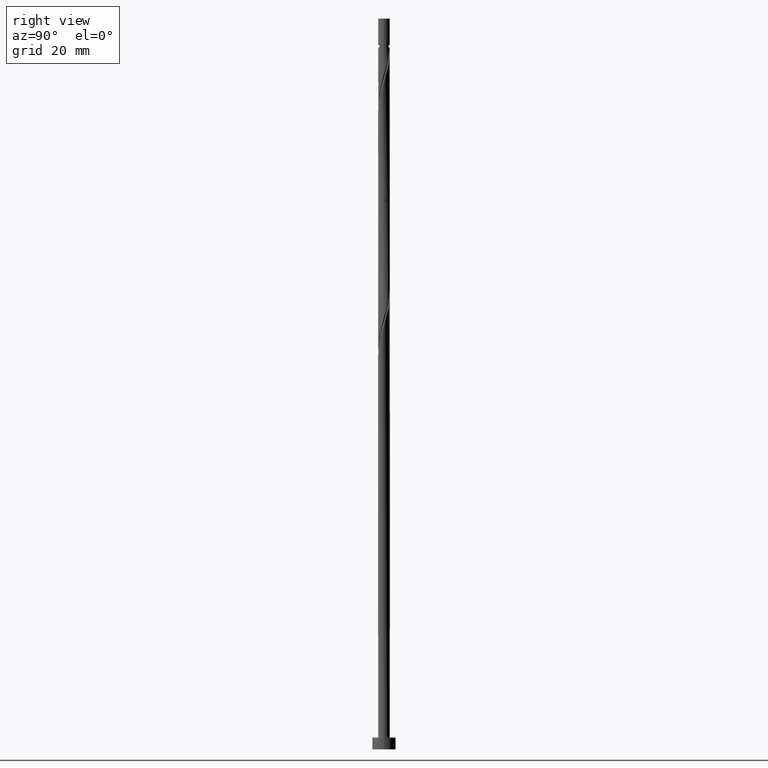
[diagram: clean part render]
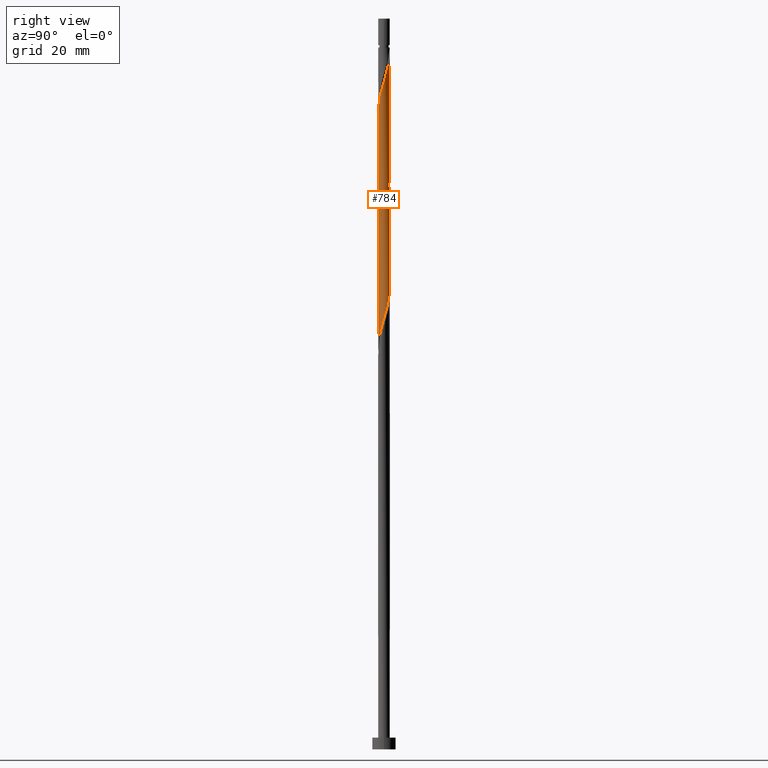
[diagram: same view with one face highlighted and labeled with its STEP entity id]
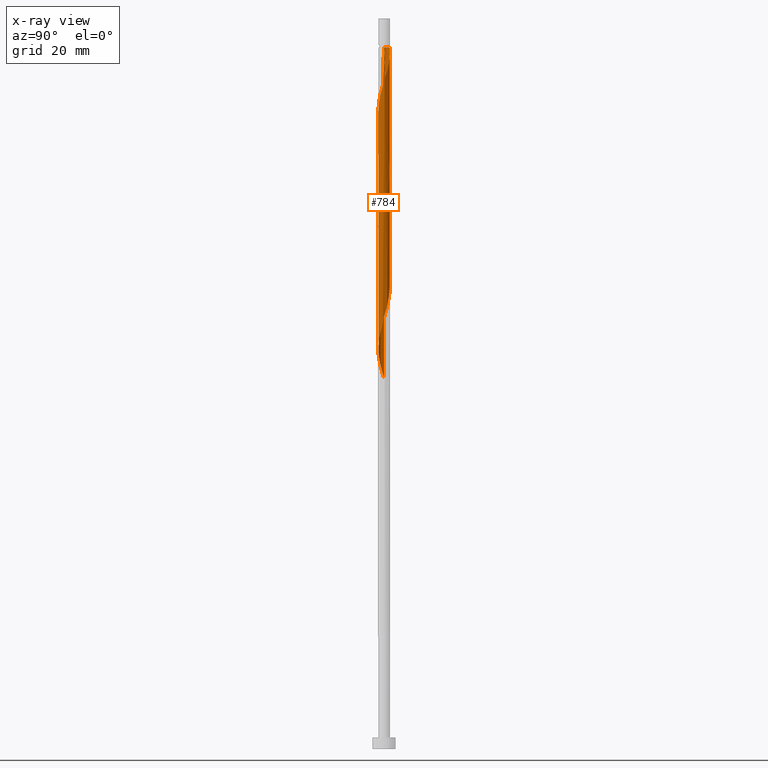
[diagram: x-ray of the same camera — body ghosted, the highlighted face saturated]
A machine part, right view. The second image highlights one B-rep face of the part: STEP entity #784.
The next image is the same camera in x-ray: the body ghosted, the highlighted face saturated — about 0% of this face is hidden behind the body in this view.
In plain terms, the highlighted cylindrical surface (bore or boss wall) has radius 1 mm, axis along (-0, -0, -1).
Its self-contained STEP definition (entity closure, byte-faithful):
#4 = CARTESIAN_POINT ( 'NONE',  ( 0.9800000000000013145, 0.1989974874213244482, 114.8675455635456757 ) ) ;
#6 = CARTESIAN_POINT ( 'NONE',  ( 0.2709383306013490311, -0.9755398771694949733, 90.38837889687896165 ) ) ;
#10 = CARTESIAN_POINT ( 'NONE',  ( -0.4150371980848580056, -0.9098044428369609360, 107.5758788968789901 ) ) ;
#51 = EDGE_CURVE ( 'NONE', #546, #231, #1178, .T. ) ;
#65 = DIRECTION ( 'NONE',  ( -0.000000000000000000, -0.000000000000000000, -1.000000000000000000 ) ) ;
#67 = CARTESIAN_POINT ( 'NONE',  ( 0.04378073590327893894, 1.011518105671216583, 78.93004556354566148 ) ) ;
#73 = CARTESIAN_POINT ( 'NONE',  ( 0.7926016667075090893, -0.6299747843123546520, 71.63837889687897587 ) ) ;
#80 = CARTESIAN_POINT ( 'NONE',  ( -0.8440690085044274538, -0.5591360655683665914, 65.38837889687899008 ) ) ;
#85 = DIRECTION ( 'NONE',  ( -0.000000000000000000, -0.000000000000000000, -1.000000000000000000 ) ) ;
#92 = CARTESIAN_POINT ( 'NONE',  ( -0.1989974874213239764, 0.9799999999999967626, 120.0758788968790185 ) ) ;
#96 = CARTESIAN_POINT ( 'NONE',  ( 0.9755398771694949733, 0.2709383306013490311, 74.76337889687897587 ) ) ;
#100 = CARTESIAN_POINT ( 'NONE',  ( 0.1989974874213249201, 0.9800000000000010925, 99.24254556354567569 ) ) ;
#108 = VECTOR ( 'NONE', #703, 1000.000000000000000 ) ;
#114 = CARTESIAN_POINT ( 'NONE',  ( -0.1135787973490352265, -0.9935289914203557782, 108.6175455635456757 ) ) ;
#120 = CARTESIAN_POINT ( 'NONE',  ( 0.7370218964083908864, -0.6758688661379378404, 111.7425455635456473 ) ) ;
#122 = CARTESIAN_POINT ( 'NONE',  ( 0.7926016667075090893, -0.6299747843123546520, 92.47171223021233288 ) ) ;
#128 = CARTESIAN_POINT ( 'NONE',  ( 0.9484818943287859350, 0.3542142389393703183, 115.3883788968790043 ) ) ;
#145 = EDGE_CURVE ( 'NONE', #257, #1139, #171, .T. ) ;
#167 = CARTESIAN_POINT ( 'NONE',  ( 0.3542142389393705404, 0.9484818943287856019, 77.88837889687897587 ) ) ;
#171 =( BOUNDED_CURVE ( )  B_SPLINE_CURVE ( 2, ( #453, #693, #350, #672, #1233, #220, #1120, #790, #10, #685, #114, #339, #567, #1127, #238, #1244, #120, #1014, #1020, #912, #1135, #1362, #4, #128, #560, #904, #574, #1252, #1351, #1335, #900, #997, #1430 ),
 .UNSPECIFIED., .F., .T. ) 
 B_SPLINE_CURVE_WITH_KNOTS ( ( 3, 2, 2, 2, 2, 2, 2, 2, 2, 2, 2, 2, 2, 2, 2, 2, 3 ),
 ( 0.5545322023138549161, 0.5625000000000000000, 0.5749999999999999556, 0.5875000000000000222, 0.6000000000000000888, 0.6125000000000001554, 0.6250000000000001110, 0.6375000000000000666, 0.6500000000000001332, 0.6625000000000000888, 0.6750000000000001554, 0.6875000000000001110, 0.7000000000000001776, 0.7125000000000001332, 0.7250000000000000888, 0.7375000000000002665, 0.7500000000000002220 ),
 .UNSPECIFIED. ) 
 CURVE ( )  GEOMETRIC_REPRESENTATION_ITEM ( )  RATIONAL_B_SPLINE_CURVE ( ( 0.9039174447099462828, 0.9019565955404752478, 0.9090909090909240486, 0.8978984914501398906, 0.9090909090909240486, 0.8978984914501398906, 0.9090909090909240486, 0.8978984914501398906, 0.9090909090909240486, 0.8978984914501398906, 0.9090909090909240486, 0.8978984914501398906, 0.9090909090909240486, 0.8978984914501398906, 0.9090909090909240486, 0.8978984914501398906, 0.9090909090909240486, 0.8978984914501398906, 0.9090909090909240486, 0.8978984914501398906, 0.9090909090909240486, 0.8978984914501398906, 0.9090909090909240486, 0.8978984914501398906, 0.9090909090909240486, 0.8978984914501398906, 0.9090909090909240486, 0.8978984914501398906, 0.9090909090909240486, 0.8978984914501398906, 0.9090909090909240486, 0.8978984914501397796, 0.9090909090909241597 ) ) 
 REPRESENTATION_ITEM ( '' )  );
#175 = CARTESIAN_POINT ( 'NONE',  ( -0.7926016667075090893, 0.6299747843123546520, 82.05504556354566148 ) ) ;
#180 = CYLINDRICAL_SURFACE ( 'NONE', #499, 1.000000000000000000 ) ;
#184 = FACE_OUTER_BOUND ( 'NONE', #921, .T. ) ;
#192 = LINE ( 'NONE', #1090, #1261 ) ;
#195 = EDGE_CURVE ( 'NONE', #294, #1139, #598, .T. ) ;
#205 = CARTESIAN_POINT ( 'NONE',  ( -0.1989974874213247813, -0.9800000000000010925, 67.99254556354566148 ) ) ;
#212 = CARTESIAN_POINT ( 'NONE',  ( 0.9484818943287856019, -0.3542142389393705404, 72.68004556354566148 ) ) ;
#217 = DIRECTION ( 'NONE',  ( -1.000000000000000000, 0.000000000000000000, 0.000000000000000000 ) ) ;
#220 = CARTESIAN_POINT ( 'NONE',  ( -0.7926016667075094224, -0.6299747843123546520, 106.0133788968790043 ) ) ;
#225 = CARTESIAN_POINT ( 'NONE',  ( 0.3542142389393705404, 0.9484818943287856019, 98.72171223021231867 ) ) ;
#231 = VERTEX_POINT ( 'NONE', #1318 ) ;
#232 = ORIENTED_EDGE ( 'NONE', *, *, #1202, .T. ) ;
#238 = CARTESIAN_POINT ( 'NONE',  ( 0.4920945116258624297, -0.8705417805181474566, 110.7008788968789901 ) ) ;
#240 = ORIENTED_EDGE ( 'NONE', *, *, #51, .F. ) ;
#245 = CARTESIAN_POINT ( 'NONE',  ( -0.8440690085044274538, -0.5591360655683665914, 86.22171223021233288 ) ) ;
#251 = CARTESIAN_POINT ( 'NONE',  ( -0.1989974874213247813, -0.9800000000000010925, 88.82587889687899008 ) ) ;
#257 = VERTEX_POINT ( 'NONE', #311 ) ;
#263 = CARTESIAN_POINT ( 'NONE',  ( 0.7370218964083911084, 0.6758688661379376184, 76.32587889687899008 ) ) ;
#264 = ORIENTED_EDGE ( 'NONE', *, *, #1157, .T. ) ;
#280 = CARTESIAN_POINT ( 'NONE',  ( -0.9484818943287856019, 0.3542142389393704294, 83.09671223021229025 ) ) ;
#284 = DIRECTION ( 'NONE',  ( -1.000000000000000000, 0.000000000000000000, 0.000000000000000000 ) ) ;
#294 = VERTEX_POINT ( 'NONE', #564 ) ;
#311 = CARTESIAN_POINT ( 'NONE',  ( -1.000000000000001332, 4.572896348877712718E-16, 103.7860764554087183 ) ) ;
#316 = CARTESIAN_POINT ( 'NONE',  ( 0.4150371980848577280, -0.9098044428369610470, 70.07587889687896165 ) ) ;
#325 = CARTESIAN_POINT ( 'NONE',  ( -0.4920945116258625407, -0.8705417805181473456, 66.95087889687897587 ) ) ;
#331 = CARTESIAN_POINT ( 'NONE',  ( -0.7370218964083911084, -0.6758688661379376184, 65.90921223021231867 ) ) ;
#333 = ORIENTED_EDGE ( 'NONE', *, *, #892, .F. ) ;
#339 = CARTESIAN_POINT ( 'NONE',  ( 0.04378073590327874465, -1.011518105671216805, 109.1383788968790185 ) ) ;
#344 = CARTESIAN_POINT ( 'NONE',  ( -0.9755398771694949733, -0.2709383306013491421, 85.18004556354564727 ) ) ;
#350 = CARTESIAN_POINT ( 'NONE',  ( -0.9800000000000013145, -0.1989974874213245870, 104.4508788968789901 ) ) ;
#357 = CARTESIAN_POINT ( 'NONE',  ( 0.5591360655683665914, -0.8440690085044274538, 91.43004556354568990 ) ) ;
#384 =( BOUNDED_CURVE ( )  B_SPLINE_CURVE ( 2, ( #1123, #1429, #1323, #666, #1423, #981, #420, #1010, #1003, #890, #1445, #1240, #100, #225, #441, #425, #1347, #1115, #1317, #528, #1436, #1339, #866 ),
 .UNSPECIFIED., .F., .T. ) 
 B_SPLINE_CURVE_WITH_KNOTS ( ( 3, 2, 2, 2, 2, 2, 2, 2, 2, 2, 2, 3 ),
 ( 0.4295322023138552492, 0.4375000000000000000, 0.4500000000000000111, 0.4625000000000000222, 0.4749999999999999778, 0.4874999999999999889, 0.5000000000000000000, 0.5124999999999999556, 0.5250000000000000222, 0.5374999999999999778, 0.5500000000000000444, 0.5545322023138549161 ),
 .UNSPECIFIED. ) 
 CURVE ( )  GEOMETRIC_REPRESENTATION_ITEM ( )  RATIONAL_B_SPLINE_CURVE ( ( 0.9039174447099461718, 0.9019565955404755808, 0.9090909090909238266, 0.8978984914501398906, 0.9090909090909238266, 0.8978984914501398906, 0.9090909090909238266, 0.8978984914501398906, 0.9090909090909238266, 0.8978984914501398906, 0.9090909090909238266, 0.8978984914501398906, 0.9090909090909238266, 0.8978984914501398906, 0.9090909090909238266, 0.8978984914501398906, 0.9090909090909238266, 0.8978984914501398906, 0.9090909090909238266, 0.8978984914501398906, 0.9090909090909238266, 0.9050328050005884695, 0.9039174447099461718 ) ) 
 REPRESENTATION_ITEM ( '' )  );
#386 = CARTESIAN_POINT ( 'NONE',  ( -0.5591360655683665914, 0.8440690085044274538, 81.01337889687899008 ) ) ;
#397 = ORIENTED_EDGE ( 'NONE', *, *, #1157, .F. ) ;
#407 = CARTESIAN_POINT ( 'NONE',  ( 0.8440690085044274538, 0.5591360655683663694, 75.80504556354564727 ) ) ;
#409 = VERTEX_POINT ( 'NONE', #710 ) ;
#420 = CARTESIAN_POINT ( 'NONE',  ( -0.6758688661379378404, 0.7370218964083908864, 102.3675455635456473 ) ) ;
#423 = CARTESIAN_POINT ( 'NONE',  ( -1.000000000000001110, -0.05697373744643328963, 63.63852576088986979 ) ) ;
#425 = CARTESIAN_POINT ( 'NONE',  ( 0.6299747843123548741, 0.7926016667075090893, 97.68004556354566148 ) ) ;
#429 = CARTESIAN_POINT ( 'NONE',  ( 0.9935289914203557782, 0.1135787973490349351, 74.24254556354563306 ) ) ;
#441 = CARTESIAN_POINT ( 'NONE',  ( 0.4920945116258626517, 0.8705417805181473456, 98.20087889687894744 ) ) ;
#453 = CARTESIAN_POINT ( 'NONE',  ( -1.000000000000001332, 4.572896348877712718E-16, 103.7860764554087183 ) ) ;
#455 = CARTESIAN_POINT ( 'NONE',  ( -0.3542142389393704849, -0.9484818943287856019, 88.30504556354564727 ) ) ;
#476 = CARTESIAN_POINT ( 'NONE',  ( 1.000000000000001332, 1.079503400390804718E-15, 94.69901467168260467 ) ) ;
#481 = CARTESIAN_POINT ( 'NONE',  ( 0.1135787973490349906, -0.9935289914203557782, 89.86754556354566148 ) ) ;
#482 = LINE ( 'NONE', #941, #108 ) ;
#499 = AXIS2_PLACEMENT_3D ( 'NONE', #1313, #65, #284 ) ;
#528 = CARTESIAN_POINT ( 'NONE',  ( 0.9755398771694949733, 0.2709383306013490311, 95.59671223021233288 ) ) ;
#530 = CARTESIAN_POINT ( 'NONE',  ( -0.9755398771694949733, -0.2709383306013491421, 64.34671223021231867 ) ) ;
#544 = CARTESIAN_POINT ( 'NONE',  ( -1.000000000000001332, -1.206944774048052528E-15, 63.44901467168259757 ) ) ;
#546 = VERTEX_POINT ( 'NONE', #731 ) ;
#547 = DIRECTION ( 'NONE',  ( -0.000000000000000000, -0.000000000000000000, -1.000000000000000000 ) ) ;
#560 = CARTESIAN_POINT ( 'NONE',  ( 0.8705417805181474566, 0.4920945116258624297, 115.9092122302123045 ) ) ;
#564 = CARTESIAN_POINT ( 'NONE',  ( -0.9999999999999976685, 0.000000000000000000, 120.0758788968789901 ) ) ;
#567 = CARTESIAN_POINT ( 'NONE',  ( 0.1989974874213244760, -0.9800000000000013145, 109.6592122302123187 ) ) ;
#569 = CARTESIAN_POINT ( 'NONE',  ( -0.9935289914203557782, -0.1135787973490350600, 84.65921223021231867 ) ) ;
#574 = CARTESIAN_POINT ( 'NONE',  ( 0.6758688661379378404, 0.7370218964083907753, 116.9508788968789617 ) ) ;
#583 = ORIENTED_EDGE ( 'NONE', *, *, #145, .F. ) ;
#598 = CIRCLE ( 'NONE', #1142, 0.9999999999999976685 ) ;
#611 = CARTESIAN_POINT ( 'NONE',  ( 0.6299747843123548741, 0.7926016667075090893, 76.84671223021236131 ) ) ;
#635 = CARTESIAN_POINT ( 'NONE',  ( -0.3542142389393704849, -0.9484818943287856019, 67.47171223021230446 ) ) ;
#658 = LINE ( 'NONE', #1107, #1193 ) ;
#662 = CARTESIAN_POINT ( 'NONE',  ( -0.9098044428369610470, -0.4150371980848577280, 64.86754556354564727 ) ) ;
#666 = CARTESIAN_POINT ( 'NONE',  ( -0.9484818943287856019, 0.3542142389393704294, 103.9300455635456331 ) ) ;
#672 = CARTESIAN_POINT ( 'NONE',  ( -0.9484818943287859350, -0.3542142389393704294, 104.9717122302123471 ) ) ;
#685 = CARTESIAN_POINT ( 'NONE',  ( -0.2709383306013492532, -0.9755398771694950844, 108.0967122302123329 ) ) ;
#693 = CARTESIAN_POINT ( 'NONE',  ( -1.000000000000002220, -0.1005037815259180872, 104.1203810308165743 ) ) ;
#703 = DIRECTION ( 'NONE',  ( -0.000000000000000000, -0.000000000000000000, -1.000000000000000000 ) ) ;
#707 = CARTESIAN_POINT ( 'NONE',  ( -0.4920945116258625407, -0.8705417805181473456, 87.78421223021230446 ) ) ;
#710 = CARTESIAN_POINT ( 'NONE',  ( 1.000000000000000000, 1.224646799147353207E-16, 120.0758788968790185 ) ) ;
#728 = CARTESIAN_POINT ( 'NONE',  ( -0.9800000000000010925, 0.1989974874213246703, 83.61754556354564727 ) ) ;
#731 = CARTESIAN_POINT ( 'NONE',  ( 1.000000000000001332, 1.079503400390804718E-15, 94.69901467168260467 ) ) ;
#734 = CARTESIAN_POINT ( 'NONE',  ( -0.8705417805181473456, 0.4920945116258624297, 82.57587889687897587 ) ) ;
#739 = CARTESIAN_POINT ( 'NONE',  ( -0.6758688661379378404, 0.7370218964083908864, 81.53421223021233288 ) ) ;
#752 = CARTESIAN_POINT ( 'NONE',  ( 1.011518105671216583, -0.04378073590327912629, 73.72171223021234709 ) ) ;
#765 = DIRECTION ( 'NONE',  ( -0.000000000000000000, -0.000000000000000000, -1.000000000000000000 ) ) ;
#784 = ADVANCED_FACE ( 'NONE', ( #184 ), #180, .T. ) ;
#790 = CARTESIAN_POINT ( 'NONE',  ( -0.5591360655683665914, -0.8440690085044274538, 107.0550455635457041 ) ) ;
#804 = CARTESIAN_POINT ( 'NONE',  ( 0.4150371980848577280, -0.9098044428369610470, 90.90921223021229025 ) ) ;
#811 = CARTESIAN_POINT ( 'NONE',  ( 0.6758688661379376184, -0.7370218964083911084, 91.95087889687900429 ) ) ;
#819 = CARTESIAN_POINT ( 'NONE',  ( 0.9800000000000010925, -0.1989974874213248368, 94.03421223021233288 ) ) ;
#866 = CARTESIAN_POINT ( 'NONE',  ( 1.000000000000001332, 1.079503400390804718E-15, 94.69901467168260467 ) ) ;
#877 = CARTESIAN_POINT ( 'NONE',  ( 0.6758688661379376184, -0.7370218964083911084, 71.11754556354567569 ) ) ;
#886 = CARTESIAN_POINT ( 'NONE',  ( 0.2709383306013490311, -0.9755398771694949733, 69.55504556354566148 ) ) ;
#888 = VERTEX_POINT ( 'NONE', #996 ) ;
#890 = CARTESIAN_POINT ( 'NONE',  ( -0.2709383306013491421, 0.9755398771694949733, 100.8050455635456757 ) ) ;
#892 = EDGE_CURVE ( 'NONE', #888, #546, #384, .T. ) ;
#895 = CARTESIAN_POINT ( 'NONE',  ( -0.6299747843123546520, -0.7926016667075090893, 66.43004556354564727 ) ) ;
#900 = CARTESIAN_POINT ( 'NONE',  ( 0.1135787973490353792, 0.9935289914203557782, 119.0342122302123187 ) ) ;
#904 = CARTESIAN_POINT ( 'NONE',  ( 0.7926016667075097555, 0.6299747843123544300, 116.4300455635456899 ) ) ;
#906 = CARTESIAN_POINT ( 'NONE',  ( -0.7370218964083911084, -0.6758688661379376184, 86.74254556354566148 ) ) ;
#912 = CARTESIAN_POINT ( 'NONE',  ( 0.9755398771694950844, -0.2709383306013493087, 113.3050455635457041 ) ) ;
#921 = EDGE_LOOP ( 'NONE', ( #1272, #1407, #583, #232, #240, #397, #264, #333 ) ) ;
#938 = CARTESIAN_POINT ( 'NONE',  ( -0.6299747843123546520, -0.7926016667075090893, 87.26337889687897587 ) ) ;
#941 = CARTESIAN_POINT ( 'NONE',  ( -1.000000000000000000, 0.000000000000000000, 125.0000000000000000 ) ) ;
#946 = CARTESIAN_POINT ( 'NONE',  ( -0.1135787973490351155, 0.9935289914203557782, 79.45087889687897587 ) ) ;
#972 = CARTESIAN_POINT ( 'NONE',  ( 0.1989974874213249201, 0.9800000000000010925, 78.40921223021231867 ) ) ;
#981 = CARTESIAN_POINT ( 'NONE',  ( -0.7926016667075090893, 0.6299747843123546520, 102.8883788968789901 ) ) ;
#984 = CARTESIAN_POINT ( 'NONE',  ( 0.5591360655683665914, -0.8440690085044274538, 70.59671223021231867 ) ) ;
#996 = CARTESIAN_POINT ( 'NONE',  ( -1.000000000000001332, -3.223517098389208546E-16, 105.1156813383492619 ) ) ;
#997 = CARTESIAN_POINT ( 'NONE',  ( -0.04378073590328147857, 1.011518105671217027, 119.5550455635457183 ) ) ;
#1003 = CARTESIAN_POINT ( 'NONE',  ( -0.4150371980848577835, 0.9098044428369610470, 101.3258788968789759 ) ) ;
#1010 = CARTESIAN_POINT ( 'NONE',  ( -0.5591360655683665914, 0.8440690085044274538, 101.8467122302123187 ) ) ;
#1014 = CARTESIAN_POINT ( 'NONE',  ( 0.8440690085044274538, -0.5591360655683665914, 112.2633788968790469 ) ) ;
#1020 = CARTESIAN_POINT ( 'NONE',  ( 0.9098044428369609360, -0.4150371980848580056, 112.7842122302123187 ) ) ;
#1029 = CARTESIAN_POINT ( 'NONE',  ( 0.9484818943287856019, -0.3542142389393705404, 93.51337889687894744 ) ) ;
#1090 = CARTESIAN_POINT ( 'NONE',  ( -1.000000000000000000, 0.000000000000000000, 125.0000000000000000 ) ) ;
#1102 = CARTESIAN_POINT ( 'NONE',  ( 0.8705417805181473456, -0.4920945116258625407, 72.15921223021233288 ) ) ;
#1107 = CARTESIAN_POINT ( 'NONE',  ( 1.000000000000000000, 1.224646799147353207E-16, 125.0000000000000000 ) ) ;
#1115 = CARTESIAN_POINT ( 'NONE',  ( 0.8440690085044274538, 0.5591360655683663694, 96.63837889687897587 ) ) ;
#1120 = CARTESIAN_POINT ( 'NONE',  ( -0.6758688661379378404, -0.7370218964083908864, 106.5342122302122903 ) ) ;
#1123 = CARTESIAN_POINT ( 'NONE',  ( -1.000000000000001332, -3.223517098389208546E-16, 105.1156813383492619 ) ) ;
#1127 = CARTESIAN_POINT ( 'NONE',  ( 0.3542142389393703183, -0.9484818943287859350, 110.1800455635457041 ) ) ;
#1132 = EDGE_CURVE ( 'NONE', #294, #888, #192, .T. ) ;
#1135 = CARTESIAN_POINT ( 'NONE',  ( 0.9935289914203557782, -0.1135787973490353098, 113.8258788968789901 ) ) ;
#1139 = VERTEX_POINT ( 'NONE', #92 ) ;
#1142 = AXIS2_PLACEMENT_3D ( 'NONE', #1348, #765, #217 ) ;
#1146 = CARTESIAN_POINT ( 'NONE',  ( -1.011518105671216583, 0.04378073590327900139, 84.13837889687900429 ) ) ;
#1152 = CARTESIAN_POINT ( 'NONE',  ( 1.000000000000001776, -0.1005037815259183648, 94.36471009627477713 ) ) ;
#1157 = EDGE_CURVE ( 'NONE', #409, #546, #658, .T. ) ;
#1160 = CARTESIAN_POINT ( 'NONE',  ( 0.8705417805181473456, -0.4920945116258625407, 92.99254556354564727 ) ) ;
#1178 =( BOUNDED_CURVE ( )  B_SPLINE_CURVE ( 2, ( #476, #1152, #819, #1029, #1160, #122, #811, #357, #804, #6, #481, #1265, #251, #455, #707, #938, #906, #245, #1353, #344, #569, #1146, #728, #280, #734, #175, #739, #386, #1186, #1194, #946, #67, #972, #167, #1414, #611, #263, #407, #1309, #96, #429, #752, #1449, #212, #1102, #73, #877, #984, #316, #886, #1327, #1421, #205, #635, #325, #895, #331, #80, #662, #530, #1426, #423, #544 ),
 .UNSPECIFIED., .F., .T. ) 
 B_SPLINE_CURVE_WITH_KNOTS ( ( 3, 2, 2, 2, 2, 2, 2, 2, 2, 2, 2, 2, 2, 2, 2, 2, 2, 2, 2, 2, 2, 2, 2, 2, 2, 2, 2, 2, 2, 2, 2, 3 ),
 ( 0.5545322023138549161, 0.5625000000000000000, 0.5749999999999999556, 0.5875000000000000222, 0.5999999999999999778, 0.6125000000000000444, 0.6250000000000000000, 0.6374999999999999556, 0.6500000000000000222, 0.6624999999999999778, 0.6750000000000000444, 0.6875000000000000000, 0.6999999999999999556, 0.7125000000000000222, 0.7249999999999999778, 0.7375000000000000444, 0.7500000000000000000, 0.7624999999999999556, 0.7750000000000000222, 0.7874999999999999778, 0.8000000000000000444, 0.8125000000000000000, 0.8249999999999999556, 0.8375000000000000222, 0.8499999999999999778, 0.8625000000000000444, 0.8750000000000000000, 0.8874999999999999556, 0.9000000000000000222, 0.9124999999999999778, 0.9250000000000000444, 0.9295322023138551382 ),
 .UNSPECIFIED. ) 
 CURVE ( )  GEOMETRIC_REPRESENTATION_ITEM ( )  RATIONAL_B_SPLINE_CURVE ( ( 0.9039174447099461718, 0.9019565955404751367, 0.9090909090909238266, 0.8978984914501398906, 0.9090909090909238266, 0.8978984914501398906, 0.9090909090909238266, 0.8978984914501398906, 0.9090909090909238266, 0.8978984914501398906, 0.9090909090909238266, 0.8978984914501398906, 0.9090909090909238266, 0.8978984914501398906, 0.9090909090909238266, 0.8978984914501398906, 0.9090909090909238266, 0.8978984914501398906, 0.9090909090909238266, 0.8978984914501398906, 0.9090909090909238266, 0.8978984914501398906, 0.9090909090909238266, 0.8978984914501398906, 0.9090909090909238266, 0.8978984914501398906, 0.9090909090909238266, 0.8978984914501398906, 0.9090909090909238266, 0.8978984914501398906, 0.9090909090909238266, 0.8978984914501398906, 0.9090909090909238266, 0.8978984914501398906, 0.9090909090909238266, 0.8978984914501398906, 0.9090909090909238266, 0.8978984914501398906, 0.9090909090909238266, 0.8978984914501398906, 0.9090909090909238266, 0.8978984914501398906, 0.9090909090909238266, 0.8978984914501398906, 0.9090909090909238266, 0.8978984914501398906, 0.9090909090909238266, 0.8978984914501398906, 0.9090909090909238266, 0.8978984914501398906, 0.9090909090909238266, 0.8978984914501398906, 0.9090909090909238266, 0.8978984914501398906, 0.9090909090909238266, 0.8978984914501398906, 0.9090909090909238266, 0.8978984914501398906, 0.9090909090909238266, 0.8978984914501398906, 0.9090909090909238266, 0.9050328050005882474, 0.9039174447099460608 ) ) 
 REPRESENTATION_ITEM ( '' )  );
#1186 = CARTESIAN_POINT ( 'NONE',  ( -0.4150371980848577835, 0.9098044428369610470, 80.49254556354563306 ) ) ;
#1193 = VECTOR ( 'NONE', #547, 1000.000000000000000 ) ;
#1194 = CARTESIAN_POINT ( 'NONE',  ( -0.2709383306013491421, 0.9755398771694949733, 79.97171223021233288 ) ) ;
#1202 = EDGE_CURVE ( 'NONE', #257, #231, #482, .T. ) ;
#1233 = CARTESIAN_POINT ( 'NONE',  ( -0.8705417805181474566, -0.4920945116258624297, 105.4925455635456615 ) ) ;
#1240 = CARTESIAN_POINT ( 'NONE',  ( 0.04378073590327893894, 1.011518105671216583, 99.76337889687896165 ) ) ;
#1244 = CARTESIAN_POINT ( 'NONE',  ( 0.6299747843123544300, -0.7926016667075096445, 111.2217122302123613 ) ) ;
#1252 = CARTESIAN_POINT ( 'NONE',  ( 0.5591360655683665914, 0.8440690085044272317, 117.4717122302123471 ) ) ;
#1261 = VECTOR ( 'NONE', #85, 1000.000000000000000 ) ;
#1265 = CARTESIAN_POINT ( 'NONE',  ( -0.04378073590327906384, -1.011518105671216583, 89.34671223021231867 ) ) ;
#1272 = ORIENTED_EDGE ( 'NONE', *, *, #1132, .F. ) ;
#1309 = CARTESIAN_POINT ( 'NONE',  ( 0.9098044428369610470, 0.4150371980848576725, 75.28421223021229025 ) ) ;
#1313 = CARTESIAN_POINT ( 'NONE',  ( 0.000000000000000000, 0.000000000000000000, 125.0000000000000000 ) ) ;
#1317 = CARTESIAN_POINT ( 'NONE',  ( 0.9098044428369610470, 0.4150371980848576725, 96.11754556354564727 ) ) ;
#1318 = CARTESIAN_POINT ( 'NONE',  ( -1.000000000000001332, -1.206944774048052528E-15, 63.44901467168259757 ) ) ;
#1323 = CARTESIAN_POINT ( 'NONE',  ( -0.9800000000000010925, 0.1989974874213246703, 104.4508788968790043 ) ) ;
#1327 = CARTESIAN_POINT ( 'NONE',  ( 0.1135787973490349906, -0.9935289914203557782, 69.03421223021231867 ) ) ;
#1335 = CARTESIAN_POINT ( 'NONE',  ( 0.2709383306013493642, 0.9755398771694950844, 118.5133788968790043 ) ) ;
#1339 = CARTESIAN_POINT ( 'NONE',  ( 1.000000000000000888, 0.05697373744643595417, 94.88852576088990531 ) ) ;
#1347 = CARTESIAN_POINT ( 'NONE',  ( 0.7370218964083911084, 0.6758688661379376184, 97.15921223021230446 ) ) ;
#1348 = CARTESIAN_POINT ( 'NONE',  ( 0.000000000000000000, 0.000000000000000000, 120.0758788968789901 ) ) ;
#1351 = CARTESIAN_POINT ( 'NONE',  ( 0.4150371980848581166, 0.9098044428369609360, 117.9925455635456899 ) ) ;
#1353 = CARTESIAN_POINT ( 'NONE',  ( -0.9098044428369610470, -0.4150371980848577280, 85.70087889687899008 ) ) ;
#1362 = CARTESIAN_POINT ( 'NONE',  ( 1.011518105671216805, 0.04378073590327870301, 114.3467122302123471 ) ) ;
#1407 = ORIENTED_EDGE ( 'NONE', *, *, #195, .T. ) ;
#1414 = CARTESIAN_POINT ( 'NONE',  ( 0.4920945116258626517, 0.8705417805181473456, 77.36754556354563306 ) ) ;
#1421 = CARTESIAN_POINT ( 'NONE',  ( -0.04378073590327906384, -1.011518105671216583, 68.51337889687899008 ) ) ;
#1423 = CARTESIAN_POINT ( 'NONE',  ( -0.8705417805181473456, 0.4920945116258624297, 103.4092122302123187 ) ) ;
#1426 = CARTESIAN_POINT ( 'NONE',  ( -0.9935289914203557782, -0.1135787973490350600, 63.82587889687896876 ) ) ;
#1429 = CARTESIAN_POINT ( 'NONE',  ( -1.000000000000001110, 0.1005037815259228057, 104.7813767629414201 ) ) ;
#1430 = CARTESIAN_POINT ( 'NONE',  ( -0.1989974874213240041, 0.9799999999999967626, 120.0758788968790185 ) ) ;
#1436 = CARTESIAN_POINT ( 'NONE',  ( 0.9935289914203557782, 0.1135787973490349351, 95.07587889687900429 ) ) ;
#1445 = CARTESIAN_POINT ( 'NONE',  ( -0.1135787973490351155, 0.9935289914203557782, 100.2842122302123045 ) ) ;
#1449 = CARTESIAN_POINT ( 'NONE',  ( 0.9800000000000010925, -0.1989974874213248368, 73.20087889687899008 ) ) ;